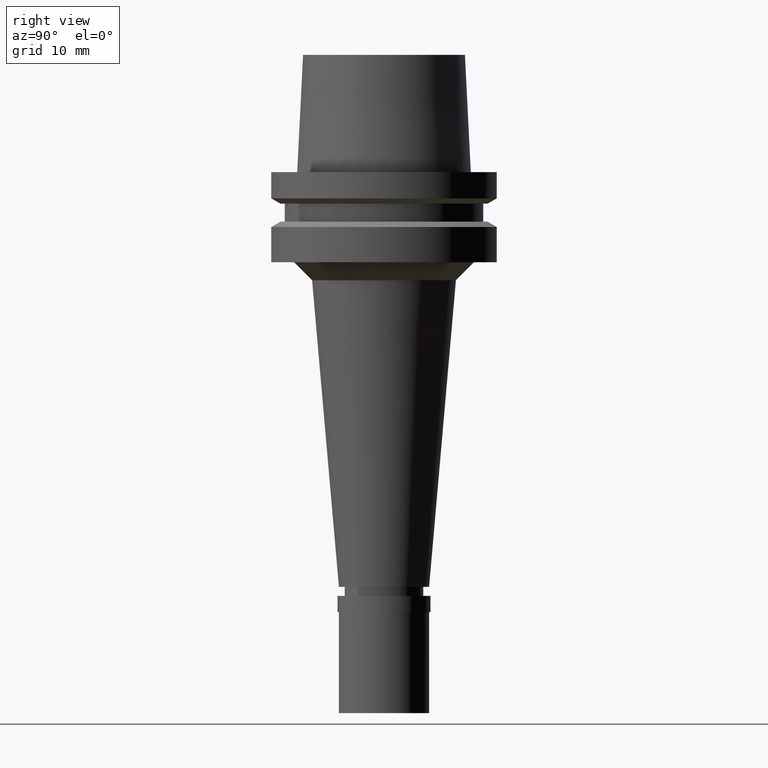
[diagram: clean part render]
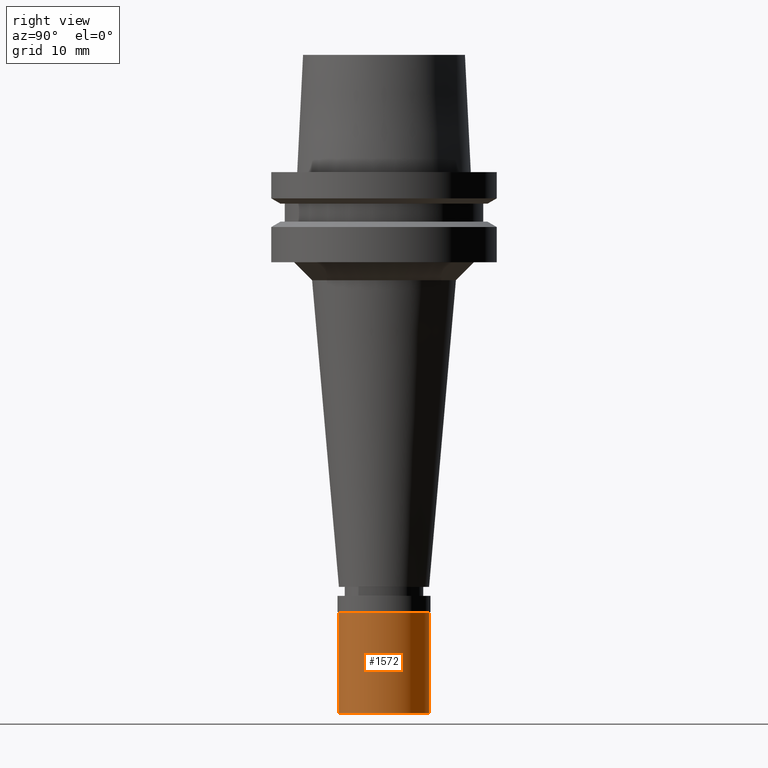
[diagram: same view with one face highlighted and labeled with its STEP entity id]
A machine part, right view. The second image highlights one B-rep face of the part: STEP entity #1572.
In plain terms, the highlighted cylindrical surface (partial cylindrical patch) has radius 5 mm, axis along (0, 0, 1).
Its self-contained STEP definition (entity closure, byte-faithful):
#166 = CARTESIAN_POINT ( 'NONE',  ( 0.0000000000000000000, -5.000000000000000000, -1.800000000000000044 ) ) ;
#211 = ORIENTED_EDGE ( 'NONE', *, *, #834, .F. ) ;
#507 = ORIENTED_EDGE ( 'NONE', *, *, #2656, .T. ) ;
#619 = AXIS2_PLACEMENT_3D ( 'NONE', #645, #1469, #2087 ) ;
#645 = CARTESIAN_POINT ( 'NONE',  ( 0.0000000000000000000, 0.0000000000000000000, -13.00000000000000000 ) ) ;
#762 = CYLINDRICAL_SURFACE ( 'NONE', #2352, 5.000000000000000000 ) ;
#790 = CARTESIAN_POINT ( 'NONE',  ( 0.0000000000000000000, 0.0000000000000000000, -13.65000000000000036 ) ) ;
#834 = EDGE_CURVE ( 'NONE', #2587, #2226, #1504, .T. ) ;
#946 = CIRCLE ( 'NONE', #619, 5.000000000000000000 ) ;
#1086 = VERTEX_POINT ( 'NONE', #1535 ) ;
#1184 = ORIENTED_EDGE ( 'NONE', *, *, #1502, .T. ) ;
#1461 = DIRECTION ( 'NONE',  ( 0.0000000000000000000, 0.0000000000000000000, -1.000000000000000000 ) ) ;
#1469 = DIRECTION ( 'NONE',  ( 0.0000000000000000000, 0.0000000000000000000, 1.000000000000000000 ) ) ;
#1497 = CIRCLE ( 'NONE', #2413, 5.000000000000000000 ) ;
#1502 = EDGE_CURVE ( 'NONE', #2000, #2226, #946, .T. ) ;
#1504 = LINE ( 'NONE', #1512, #2389 ) ;
#1512 = CARTESIAN_POINT ( 'NONE',  ( 0.0000000000000000000, 5.000000000000000000, -1.800000000000000044 ) ) ;
#1535 = CARTESIAN_POINT ( 'NONE',  ( 0.0000000000000000000, -5.000000000000000000, -1.800000000000000044 ) ) ;
#1572 = ADVANCED_FACE ( 'NONE', ( #2620 ), #762, .T. ) ;
#1645 = ORIENTED_EDGE ( 'NONE', *, *, #2258, .T. ) ;
#1682 = DIRECTION ( 'NONE',  ( 0.0000000000000000000, 1.000000000000000000, 0.0000000000000000000 ) ) ;
#1893 = CARTESIAN_POINT ( 'NONE',  ( 0.0000000000000000000, 5.000000000000000000, -13.00000000000000000 ) ) ;
#1928 = VECTOR ( 'NONE', #1461, 1000.000000000000000 ) ;
#1987 = CARTESIAN_POINT ( 'NONE',  ( 0.0000000000000000000, -5.000000000000000000, -13.00000000000000000 ) ) ;
#2000 = VERTEX_POINT ( 'NONE', #1987 ) ;
#2059 = CARTESIAN_POINT ( 'NONE',  ( 0.0000000000000000000, 0.0000000000000000000, -1.800000000000000044 ) ) ;
#2087 = DIRECTION ( 'NONE',  ( 0.0000000000000000000, -1.000000000000000000, 0.0000000000000000000 ) ) ;
#2226 = VERTEX_POINT ( 'NONE', #1893 ) ;
#2236 = LINE ( 'NONE', #166, #1928 ) ;
#2258 = EDGE_CURVE ( 'NONE', #2587, #1086, #1497, .T. ) ;
#2291 = EDGE_LOOP ( 'NONE', ( #1645, #507, #1184, #211 ) ) ;
#2299 = DIRECTION ( 'NONE',  ( 0.0000000000000000000, 0.0000000000000000000, -1.000000000000000000 ) ) ;
#2336 = DIRECTION ( 'NONE',  ( 0.0000000000000000000, 0.0000000000000000000, -1.000000000000000000 ) ) ;
#2352 = AXIS2_PLACEMENT_3D ( 'NONE', #790, #2391, #2631 ) ;
#2389 = VECTOR ( 'NONE', #2336, 1000.000000000000000 ) ;
#2391 = DIRECTION ( 'NONE',  ( 0.0000000000000000000, 0.0000000000000000000, 1.000000000000000000 ) ) ;
#2413 = AXIS2_PLACEMENT_3D ( 'NONE', #2059, #2299, #1682 ) ;
#2587 = VERTEX_POINT ( 'NONE', #2641 ) ;
#2620 = FACE_OUTER_BOUND ( 'NONE', #2291, .T. ) ;
#2631 = DIRECTION ( 'NONE',  ( 0.0000000000000000000, 1.000000000000000000, 0.0000000000000000000 ) ) ;
#2641 = CARTESIAN_POINT ( 'NONE',  ( 0.0000000000000000000, 5.000000000000000000, -1.800000000000000044 ) ) ;
#2656 = EDGE_CURVE ( 'NONE', #1086, #2000, #2236, .T. ) ;